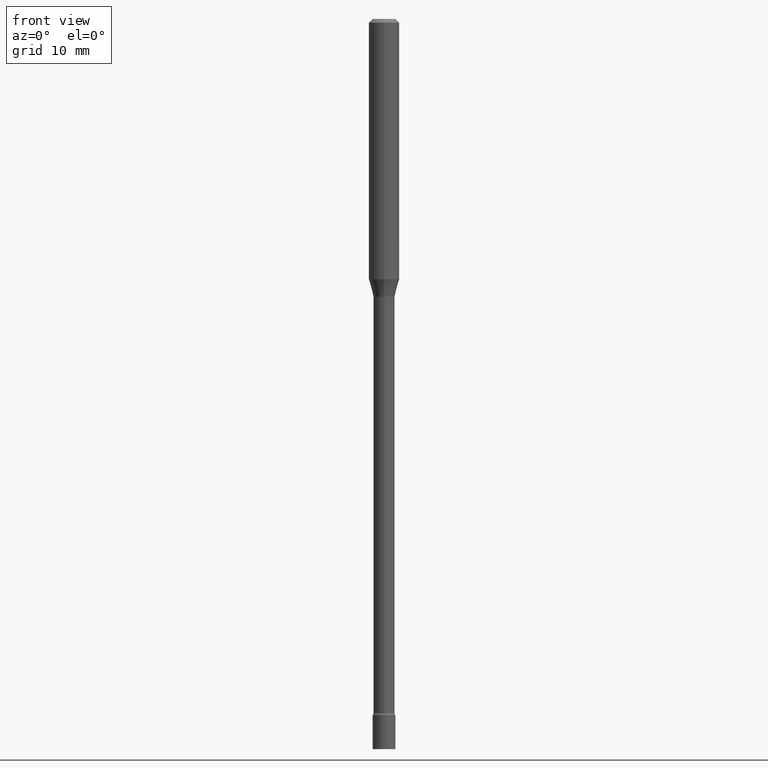
[diagram: clean part render]
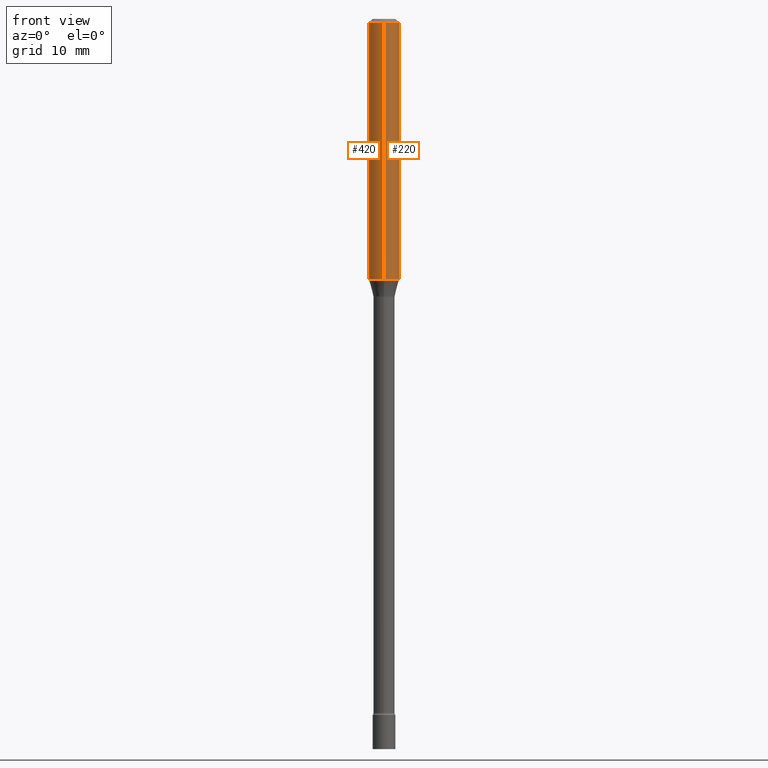
[diagram: same view with one multi-face feature highlighted, each face labeled with its STEP entity id]
A machine part, front view. The highlighted faces form ONE feature: a constant-radius fillet chain: 2 tangent blend faces with common blend radius 1.5875 mm. The faces share edges in the B-rep.
Their STEP definitions:
[1] entity #220 (Cylinder):
#5 = CIRCLE ( 'NONE', #97, 0.06250000000000000000 ) ;
#10 = VERTEX_POINT ( 'NONE', #77 ) ;
#45 = EDGE_CURVE ( 'NONE', #10, #221, #126, .T. ) ;
#62 = VECTOR ( 'NONE', #319, 39.37007874015748143 ) ;
#76 = CIRCLE ( 'NONE', #361, 0.06250000000000000000 ) ;
#77 = CARTESIAN_POINT ( 'NONE',  ( 4.440892098500886486E-16, 0.06249999999999626688, -1.069837444817705485 ) ) ;
#97 = AXIS2_PLACEMENT_3D ( 'NONE', #440, #192, #473 ) ;
#112 = EDGE_LOOP ( 'NONE', ( #195, #374, #359, #482 ) ) ;
#126 = LINE ( 'NONE', #164, #62 ) ;
#139 = CARTESIAN_POINT ( 'NONE',  ( -4.364351673553912750E-16, -0.06250000000000005551, -0.01499999999999981209 ) ) ;
#154 = AXIS2_PLACEMENT_3D ( 'NONE', #358, #162, #237 ) ;
#162 = DIRECTION ( 'NONE',  ( -2.445452186311663460E-29, 3.491505139447903761E-15, 1.000000000000000000 ) ) ;
#164 = CARTESIAN_POINT ( 'NONE',  ( 4.440892098500625669E-16, 0.06250000000000000000, -2.182190712154939851E-16 ) ) ;
#180 = CARTESIAN_POINT ( 'NONE',  ( 2.616236318427541251E-29, -3.735342936954831179E-15, -1.069837444817705263 ) ) ;
#192 = DIRECTION ( 'NONE',  ( -2.445452186311663460E-29, 3.491505139447903761E-15, 1.000000000000000000 ) ) ;
#195 = ORIENTED_EDGE ( 'NONE', *, *, #378, .T. ) ;
#220 = ADVANCED_FACE ( 'NONE', ( #516 ), #408, .T. ) ;
#221 = VERTEX_POINT ( 'NONE', #318 ) ;
#237 = DIRECTION ( 'NONE',  ( -6.982962677686265922E-15, -1.000000000000000000, 3.491505139447903761E-15 ) ) ;
#248 = DIRECTION ( 'NONE',  ( -6.982962677686265922E-15, -1.000000000000000000, 4.370956789862821150E-15 ) ) ;
#249 = DIRECTION ( 'NONE',  ( -2.445452186311663460E-29, 3.491505139447903761E-15, 1.000000000000000000 ) ) ;
#263 = VERTEX_POINT ( 'NONE', #507 ) ;
#318 = CARTESIAN_POINT ( 'NONE',  ( 4.440892098500889444E-16, 0.06249999999999995143, -0.01500000000000024751 ) ) ;
#319 = DIRECTION ( 'NONE',  ( -2.445452186311663460E-29, 3.491505139447903761E-15, 1.000000000000000000 ) ) ;
#358 = CARTESIAN_POINT ( 'NONE',  ( 0.000000000000000000, 0.000000000000000000, 0.000000000000000000 ) ) ;
#359 = ORIENTED_EDGE ( 'NONE', *, *, #429, .F. ) ;
#361 = AXIS2_PLACEMENT_3D ( 'NONE', #180, #249, #248 ) ;
#374 = ORIENTED_EDGE ( 'NONE', *, *, #45, .T. ) ;
#378 = EDGE_CURVE ( 'NONE', #263, #10, #76, .T. ) ;
#396 = VERTEX_POINT ( 'NONE', #139 ) ;
#397 = LINE ( 'NONE', #520, #488 ) ;
#408 = CYLINDRICAL_SURFACE ( 'NONE', #154, 0.06250000000000000000 ) ;
#429 = EDGE_CURVE ( 'NONE', #396, #221, #5, .T. ) ;
#440 = CARTESIAN_POINT ( 'NONE',  ( 3.668178279467502056E-31, -5.237257709171866513E-17, -0.01500000000000003067 ) ) ;
#444 = DIRECTION ( 'NONE',  ( -2.445452186311663460E-29, 3.491505139447903761E-15, 1.000000000000000000 ) ) ;
#473 = DIRECTION ( 'NONE',  ( -6.982962677686265922E-15, -1.000000000000000000, 3.483106191921935554E-15 ) ) ;
#482 = ORIENTED_EDGE ( 'NONE', *, *, #500, .F. ) ;
#488 = VECTOR ( 'NONE', #444, 39.37007874015748143 ) ;
#500 = EDGE_CURVE ( 'NONE', #263, #396, #397, .T. ) ;
#507 = CARTESIAN_POINT ( 'NONE',  ( -4.364351673553654891E-16, -0.06250000000000373312, -1.069837444817705041 ) ) ;
#516 = FACE_OUTER_BOUND ( 'NONE', #112, .T. ) ;
#520 = CARTESIAN_POINT ( 'NONE',  ( -4.364351673553916201E-16, -0.06250000000000000000, 2.182190712154939851E-16 ) ) ;
[2] entity #420 (Cylinder):
#10 = VERTEX_POINT ( 'NONE', #77 ) ;
#34 = CIRCLE ( 'NONE', #402, 0.06250000000000000000 ) ;
#45 = EDGE_CURVE ( 'NONE', #10, #221, #126, .T. ) ;
#62 = VECTOR ( 'NONE', #319, 39.37007874015748143 ) ;
#77 = CARTESIAN_POINT ( 'NONE',  ( 4.440892098500886486E-16, 0.06249999999999626688, -1.069837444817705485 ) ) ;
#126 = LINE ( 'NONE', #164, #62 ) ;
#139 = CARTESIAN_POINT ( 'NONE',  ( -4.364351673553912750E-16, -0.06250000000000005551, -0.01499999999999981209 ) ) ;
#153 = CARTESIAN_POINT ( 'NONE',  ( 0.000000000000000000, 0.000000000000000000, 0.000000000000000000 ) ) ;
#164 = CARTESIAN_POINT ( 'NONE',  ( 4.440892098500625669E-16, 0.06250000000000000000, -2.182190712154939851E-16 ) ) ;
#188 = DIRECTION ( 'NONE',  ( -2.445452186311663460E-29, 3.491505139447903761E-15, 1.000000000000000000 ) ) ;
#202 = EDGE_CURVE ( 'NONE', #10, #263, #344, .T. ) ;
#212 = CARTESIAN_POINT ( 'NONE',  ( 3.668178279467502056E-31, -5.237257709171866513E-17, -0.01500000000000003067 ) ) ;
#221 = VERTEX_POINT ( 'NONE', #318 ) ;
#224 = CARTESIAN_POINT ( 'NONE',  ( 2.616236318427541251E-29, -3.735342936954831179E-15, -1.069837444817705263 ) ) ;
#257 = DIRECTION ( 'NONE',  ( -2.445452186311663460E-29, 3.491505139447903761E-15, 1.000000000000000000 ) ) ;
#260 = CYLINDRICAL_SURFACE ( 'NONE', #272, 0.06250000000000000000 ) ;
#263 = VERTEX_POINT ( 'NONE', #507 ) ;
#264 = DIRECTION ( 'NONE',  ( -6.982962677686265922E-15, -1.000000000000000000, 3.491505139447903761E-15 ) ) ;
#272 = AXIS2_PLACEMENT_3D ( 'NONE', #153, #394, #264 ) ;
#275 = ORIENTED_EDGE ( 'NONE', *, *, #202, .T. ) ;
#279 = AXIS2_PLACEMENT_3D ( 'NONE', #224, #188, #348 ) ;
#287 = EDGE_CURVE ( 'NONE', #221, #396, #34, .T. ) ;
#305 = ORIENTED_EDGE ( 'NONE', *, *, #45, .F. ) ;
#318 = CARTESIAN_POINT ( 'NONE',  ( 4.440892098500889444E-16, 0.06249999999999995143, -0.01500000000000024751 ) ) ;
#319 = DIRECTION ( 'NONE',  ( -2.445452186311663460E-29, 3.491505139447903761E-15, 1.000000000000000000 ) ) ;
#344 = CIRCLE ( 'NONE', #279, 0.06250000000000000000 ) ;
#348 = DIRECTION ( 'NONE',  ( -6.982962677686265922E-15, -1.000000000000000000, 4.370956789862821150E-15 ) ) ;
#352 = FACE_OUTER_BOUND ( 'NONE', #383, .T. ) ;
#383 = EDGE_LOOP ( 'NONE', ( #305, #275, #437, #446 ) ) ;
#394 = DIRECTION ( 'NONE',  ( -2.445452186311663460E-29, 3.491505139447903761E-15, 1.000000000000000000 ) ) ;
#396 = VERTEX_POINT ( 'NONE', #139 ) ;
#397 = LINE ( 'NONE', #520, #488 ) ;
#402 = AXIS2_PLACEMENT_3D ( 'NONE', #212, #257, #422 ) ;
#420 = ADVANCED_FACE ( 'NONE', ( #352 ), #260, .T. ) ;
#422 = DIRECTION ( 'NONE',  ( -6.982962677686265922E-15, -1.000000000000000000, 3.483106191921935554E-15 ) ) ;
#437 = ORIENTED_EDGE ( 'NONE', *, *, #500, .T. ) ;
#444 = DIRECTION ( 'NONE',  ( -2.445452186311663460E-29, 3.491505139447903761E-15, 1.000000000000000000 ) ) ;
#446 = ORIENTED_EDGE ( 'NONE', *, *, #287, .F. ) ;
#488 = VECTOR ( 'NONE', #444, 39.37007874015748143 ) ;
#500 = EDGE_CURVE ( 'NONE', #263, #396, #397, .T. ) ;
#507 = CARTESIAN_POINT ( 'NONE',  ( -4.364351673553654891E-16, -0.06250000000000373312, -1.069837444817705041 ) ) ;
#520 = CARTESIAN_POINT ( 'NONE',  ( -4.364351673553916201E-16, -0.06250000000000000000, 2.182190712154939851E-16 ) ) ;